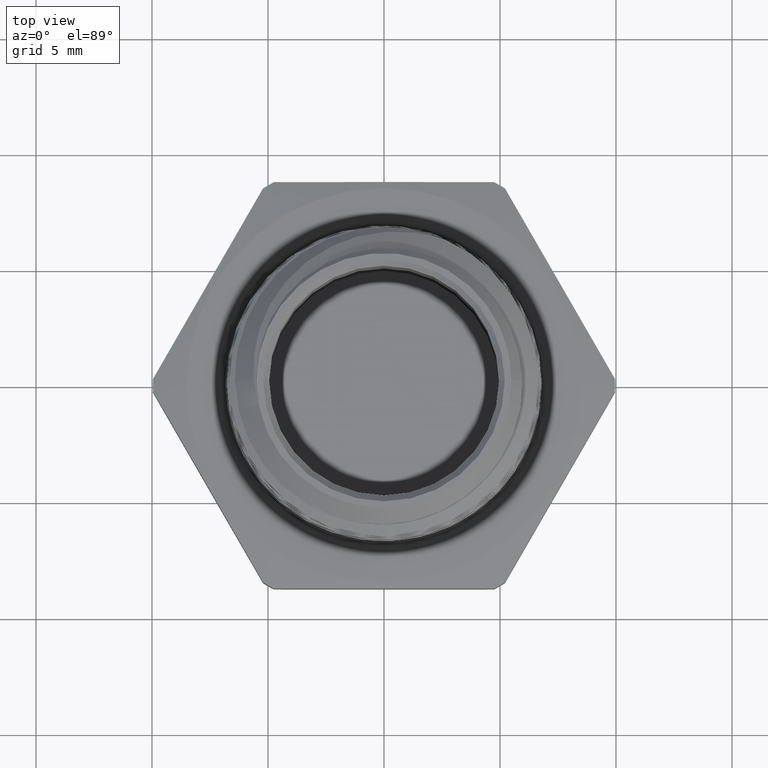
[diagram: clean part render]
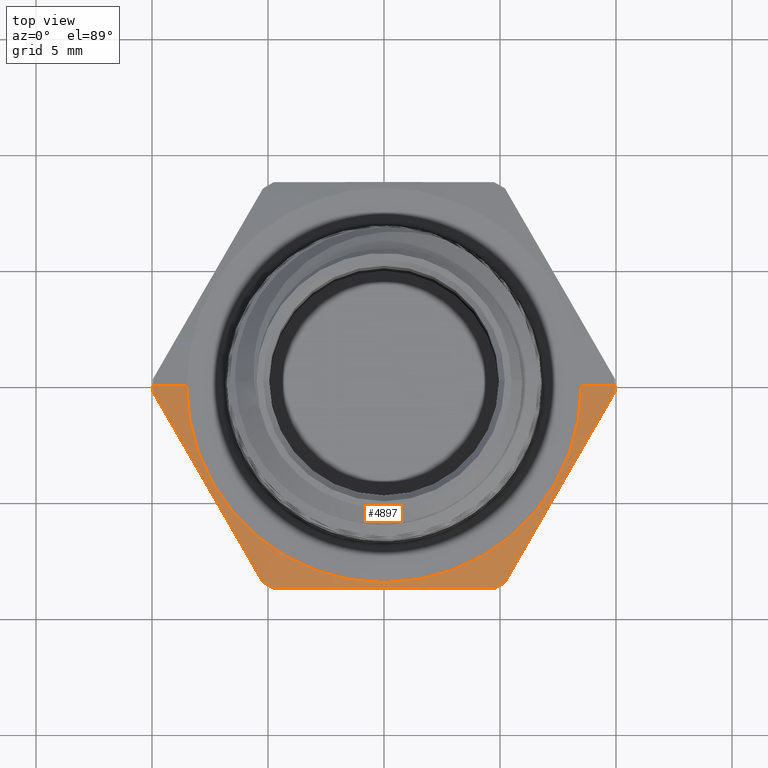
[diagram: same view with one face highlighted and labeled with its STEP entity id]
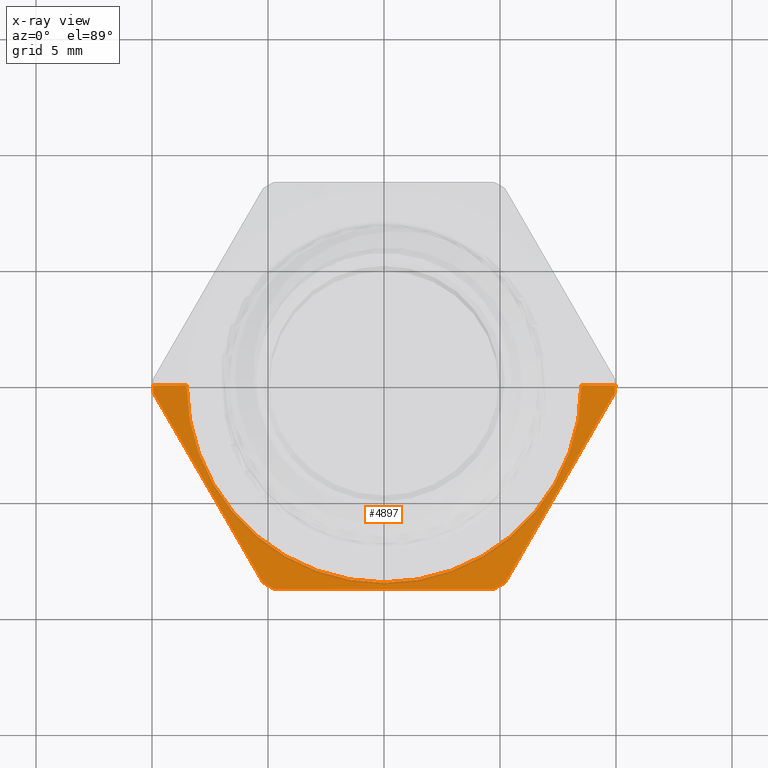
[diagram: x-ray of the same camera — body ghosted, the highlighted face saturated]
A machine part, top view. The second image highlights one B-rep face of the part: STEP entity #4897.
The next image is the same camera in x-ray: the body ghosted, the highlighted face saturated — about 0% of this face is hidden behind the body in this view.
In plain terms, the highlighted conical surface has half-angle 78 deg.
Its self-contained STEP definition (entity closure, byte-faithful):
#685 = AXIS2_PLACEMENT_3D ( 'NONE', #3100, #3101, #3102 ) ;
#691 = AXIS2_PLACEMENT_3D ( 'NONE', #3122, #3123, #3124 ) ;
#693 = AXIS2_PLACEMENT_3D ( 'NONE', #3133, #3134, #3135 ) ;
#694 = AXIS2_PLACEMENT_3D ( 'NONE', #3142, #3143, #3144 ) ;
#722 = AXIS2_PLACEMENT_3D ( 'NONE', #4469, #4470, #4471 ) ;
#755 = AXIS2_PLACEMENT_3D ( 'NONE', #3491, #3492, #3490 ) ;
#863 = ORIENTED_EDGE ( 'NONE', *, *, #1736, .F. ) ;
#873 = ORIENTED_EDGE ( 'NONE', *, *, #1724, .F. ) ;
#877 = ORIENTED_EDGE ( 'NONE', *, *, #1735, .F. ) ;
#879 = ORIENTED_EDGE ( 'NONE', *, *, #1788, .F. ) ;
#882 = ORIENTED_EDGE ( 'NONE', *, *, #1727, .F. ) ;
#883 = ORIENTED_EDGE ( 'NONE', *, *, #1719, .F. ) ;
#884 = ORIENTED_EDGE ( 'NONE', *, *, #1797, .F. ) ;
#885 = ORIENTED_EDGE ( 'NONE', *, *, #1734, .F. ) ;
#895 = ORIENTED_EDGE ( 'NONE', *, *, #1712, .T. ) ;
#896 = ORIENTED_EDGE ( 'NONE', *, *, #1789, .T. ) ;
#1637 = B_SPLINE_CURVE_WITH_KNOTS ( 'NONE', 3,
 ( #3157, #3145, #3146, #3159, #3160 ),
 .UNSPECIFIED., .F., .F.,
 ( 4, 1, 4 ),
 ( 1.975061656132253800E-006, 0.004749162338215723100, 0.009496349614775315100 ),
 .UNSPECIFIED. ) ;
#1638 = B_SPLINE_CURVE_WITH_KNOTS ( 'NONE', 3,
 ( #3162, #3156, #3158, #3164, #3165, #3166, #3167, #3168 ),
 .UNSPECIFIED., .F., .F.,
 ( 4, 2, 2, 4 ),
 ( 0.01944090170886726400, 0.02420207298205594200, 0.02658265861865027900, 0.02896324425524461600 ),
 .UNSPECIFIED. ) ;
#1639 = B_SPLINE_CURVE_WITH_KNOTS ( 'NONE', 3,
 ( #3170, #3161, #3163, #3172, #3173 ),
 .UNSPECIFIED., .F., .F.,
 ( 4, 1, 4 ),
 ( 1.975061655720875300E-006, 0.004749162338215320700, 0.009496349614774921400 ),
 .UNSPECIFIED. ) ;
#1712 = EDGE_CURVE ( 'NONE', #1868, #1859, #2601, .T. ) ;
#1719 = EDGE_CURVE ( 'NONE', #2527, #2523, #2608, .T. ) ;
#1724 = EDGE_CURVE ( 'NONE', #2518, #2521, #2614, .T. ) ;
#1727 = EDGE_CURVE ( 'NONE', #1857, #2509, #2619, .T. ) ;
#1734 = EDGE_CURVE ( 'NONE', #2523, #1826, #1637, .T. ) ;
#1735 = EDGE_CURVE ( 'NONE', #2521, #2527, #1638, .T. ) ;
#1736 = EDGE_CURVE ( 'NONE', #2509, #2518, #1639, .T. ) ;
#1788 = EDGE_CURVE ( 'NONE', #1826, #1884, #2687, .T. ) ;
#1789 = EDGE_CURVE ( 'NONE', #1859, #1884, #2698, .T. ) ;
#1797 = EDGE_CURVE ( 'NONE', #1868, #1857, #2705, .T. ) ;
#1826 = VERTEX_POINT ( 'NONE', #4524 ) ;
#1857 = VERTEX_POINT ( 'NONE', #4551 ) ;
#1859 = VERTEX_POINT ( 'NONE', #4553 ) ;
#1868 = VERTEX_POINT ( 'NONE', #4562 ) ;
#1884 = VERTEX_POINT ( 'NONE', #4578 ) ;
#2509 = VERTEX_POINT ( 'NONE', #4587 ) ;
#2518 = VERTEX_POINT ( 'NONE', #3365 ) ;
#2521 = VERTEX_POINT ( 'NONE', #3367 ) ;
#2523 = VERTEX_POINT ( 'NONE', #3369 ) ;
#2527 = VERTEX_POINT ( 'NONE', #3373 ) ;
#2601 = CIRCLE ( 'NONE', #685, 0.3350000000000000200 ) ;
#2608 = CIRCLE ( 'NONE', #691, 0.3923716857408416900 ) ;
#2614 = CIRCLE ( 'NONE', #693, 0.3923716857408416900 ) ;
#2619 = CIRCLE ( 'NONE', #694, 0.3923716857408416900 ) ;
#2687 = CIRCLE ( 'NONE', #722, 0.3923716857408416900 ) ;
#2698 = LINE ( 'NONE', #4468, #2700 ) ;
#2700 = VECTOR ( 'NONE', #4464, 39.37007874015748900 ) ;
#2705 = LINE ( 'NONE', #4494, #2706 ) ;
#2706 = VECTOR ( 'NONE', #4482, 39.37007874015748100 ) ;
#3100 = CARTESIAN_POINT ( 'NONE',  ( 1.347111479062086200E-017, 0.0000000000000000000, 0.1099999999999999700 ) ) ;
#3101 = DIRECTION ( 'NONE',  ( -1.224646799147351200E-016, -0.0000000000000000000, -1.000000000000000000 ) ) ;
#3102 = DIRECTION ( 'NONE',  ( -1.000000000000000000, 0.0000000000000000000, 1.019346266292635500E-016 ) ) ;
#3122 = CARTESIAN_POINT ( 'NONE',  ( 1.197769129782269500E-017, 0.0000000000000000000, 0.09780527174171400900 ) ) ;
#3123 = DIRECTION ( 'NONE',  ( -1.224646799147351200E-016, -0.0000000000000000000, -1.000000000000000000 ) ) ;
#3124 = DIRECTION ( 'NONE',  ( -1.000000000000000000, 0.0000000000000000000, 1.305449698402467100E-016 ) ) ;
#3133 = CARTESIAN_POINT ( 'NONE',  ( 1.197769129782269500E-017, 0.0000000000000000000, 0.09780527174171400900 ) ) ;
#3134 = DIRECTION ( 'NONE',  ( -1.224646799147351200E-016, -0.0000000000000000000, -1.000000000000000000 ) ) ;
#3135 = DIRECTION ( 'NONE',  ( -1.000000000000000000, 0.0000000000000000000, 1.305449698402467100E-016 ) ) ;
#3142 = CARTESIAN_POINT ( 'NONE',  ( 1.197769129782269500E-017, 0.0000000000000000000, 0.09780527174171400900 ) ) ;
#3143 = DIRECTION ( 'NONE',  ( -1.224646799147351200E-016, -0.0000000000000000000, -1.000000000000000000 ) ) ;
#3144 = DIRECTION ( 'NONE',  ( -1.000000000000000000, 0.0000000000000000000, 1.305449698402467100E-016 ) ) ;
#3145 = CARTESIAN_POINT ( 'NONE',  ( -0.2364797186814895400, -0.2804051122840647800, 0.1041128245892189200 ) ) ;
#3146 = CARTESIAN_POINT ( 'NONE',  ( -0.2987787643056310500, -0.1725000000000000400, 0.1116360441773807900 ) ) ;
#3156 = CARTESIAN_POINT ( 'NONE',  ( 0.1247306861591275200, -0.3449999999999998600, 0.1040993998344882400 ) ) ;
#3157 = CARTESIAN_POINT ( 'NONE',  ( -0.2053301958694187800, -0.3343576684260972100, 0.09780527174171402300 ) ) ;
#3158 = CARTESIAN_POINT ( 'NONE',  ( 0.06250744931464363700, -0.3449999999999997500, 0.1078667552873613700 ) ) ;
#3159 = CARTESIAN_POINT ( 'NONE',  ( -0.3610778099297730600, -0.06459488771593512000, 0.1041128245892190000 ) ) ;
#3160 = CARTESIAN_POINT ( 'NONE',  ( -0.3922273327418436800, -0.01064233157390284000, 0.09780527174171406400 ) ) ;
#3161 = CARTESIAN_POINT ( 'NONE',  ( 0.3610778099297727300, -0.06459488771593485700, 0.1041128245892189000 ) ) ;
#3162 = CARTESIAN_POINT ( 'NONE',  ( 0.1868971368724250700, -0.3449999999999998100, 0.09780527174171399500 ) ) ;
#3163 = CARTESIAN_POINT ( 'NONE',  ( 0.2987787643056310500, -0.1725000000000000100, 0.1116360441773807900 ) ) ;
#3164 = CARTESIAN_POINT ( 'NONE',  ( -0.03095414757252233600, -0.3449999999999998600, 0.1078782555001667500 ) ) ;
#3165 = CARTESIAN_POINT ( 'NONE',  ( -0.06212850595196955900, -0.3449999999999998100, 0.1069702373673606700 ) ) ;
#3166 = CARTESIAN_POINT ( 'NONE',  ( -0.1245142246070181000, -0.3449999999999998600, 0.1035077536880368700 ) ) ;
#3167 = CARTESIAN_POINT ( 'NONE',  ( -0.1557582215120212600, -0.3449999999999998100, 0.1009579741993840700 ) ) ;
#3168 = CARTESIAN_POINT ( 'NONE',  ( -0.1868971368724250700, -0.3449999999999998100, 0.09780527174171402300 ) ) ;
#3170 = CARTESIAN_POINT ( 'NONE',  ( 0.3922273327418436800, -0.01064233157390236500, 0.09780527174171395300 ) ) ;
#3172 = CARTESIAN_POINT ( 'NONE',  ( 0.2364797186814893700, -0.2804051122840650600, 0.1041128245892189000 ) ) ;
#3173 = CARTESIAN_POINT ( 'NONE',  ( 0.2053301958694185000, -0.3343576684260973200, 0.09780527174171399500 ) ) ;
#3365 = CARTESIAN_POINT ( 'NONE',  ( 0.2053301958694185000, -0.3343576684260973200, 0.09780527174171399500 ) ) ;
#3367 = CARTESIAN_POINT ( 'NONE',  ( 0.1868971368724250700, -0.3449999999999998100, 0.09780527174171399500 ) ) ;
#3369 = CARTESIAN_POINT ( 'NONE',  ( -0.2053301958694187800, -0.3343576684260972100, 0.09780527174171402300 ) ) ;
#3373 = CARTESIAN_POINT ( 'NONE',  ( -0.1868971368724250700, -0.3449999999999998100, 0.09780527174171402300 ) ) ;
#3490 = DIRECTION ( 'NONE',  ( -1.000000000000000000, 0.0000000000000000000, 1.019346266292635500E-016 ) ) ;
#3491 = CARTESIAN_POINT ( 'NONE',  ( 1.347111479062086200E-017, 0.0000000000000000000, 0.1099999999999999700 ) ) ;
#3492 = DIRECTION ( 'NONE',  ( -1.224646799147351200E-016, -0.0000000000000000000, -1.000000000000000000 ) ) ;
#4464 = DIRECTION ( 'NONE',  ( -0.9781476007338069100, 0.0000000000000000000, -0.2079116908177530400 ) ) ;
#4468 = CARTESIAN_POINT ( 'NONE',  ( -0.3350000000000000200, 0.0000000000000000000, 0.1100000000000000000 ) ) ;
#4469 = CARTESIAN_POINT ( 'NONE',  ( 1.197769129782269500E-017, 0.0000000000000000000, 0.09780527174171400900 ) ) ;
#4470 = DIRECTION ( 'NONE',  ( -1.224646799147351200E-016, -0.0000000000000000000, -1.000000000000000000 ) ) ;
#4471 = DIRECTION ( 'NONE',  ( -1.000000000000000000, 0.0000000000000000000, 1.305449698402467100E-016 ) ) ;
#4482 = DIRECTION ( 'NONE',  ( 0.9781476007338069100, 1.197885328332319900E-016, -0.2079116908177532600 ) ) ;
#4494 = CARTESIAN_POINT ( 'NONE',  ( 0.3350000000000000200, 4.102566777143633400E-017, 0.1099999999999999300 ) ) ;
#4524 = CARTESIAN_POINT ( 'NONE',  ( -0.3922273327418436800, -0.01064233157390284000, 0.09780527174171406400 ) ) ;
#4551 = CARTESIAN_POINT ( 'NONE',  ( 0.3923716857408418000, 4.805167290185730100E-017, 0.09780527174171395300 ) ) ;
#4553 = CARTESIAN_POINT ( 'NONE',  ( -0.3350000000000000200, 0.0000000000000000000, 0.1100000000000000000 ) ) ;
#4562 = CARTESIAN_POINT ( 'NONE',  ( 0.3350000000000000200, 4.102566777143634000E-017, 0.1099999999999999300 ) ) ;
#4578 = CARTESIAN_POINT ( 'NONE',  ( -0.3923716857408416900, 0.0000000000000000000, 0.09780527174171406400 ) ) ;
#4587 = CARTESIAN_POINT ( 'NONE',  ( 0.3922273327418436800, -0.01064233157390236500, 0.09780527174171395300 ) ) ;
#4599 = EDGE_LOOP ( 'NONE', ( #884, #895, #896, #879, #885, #883, #877, #873, #863, #882 ) ) ;
#4897 = ADVANCED_FACE ( 'NONE', ( #5223 ), #5230, .T. ) ;
#5223 = FACE_OUTER_BOUND ( 'NONE', #4599, .T. ) ;
#5230 = CONICAL_SURFACE ( 'NONE', #755, 0.3350000000000000200, 1.361356816555583400 ) ;